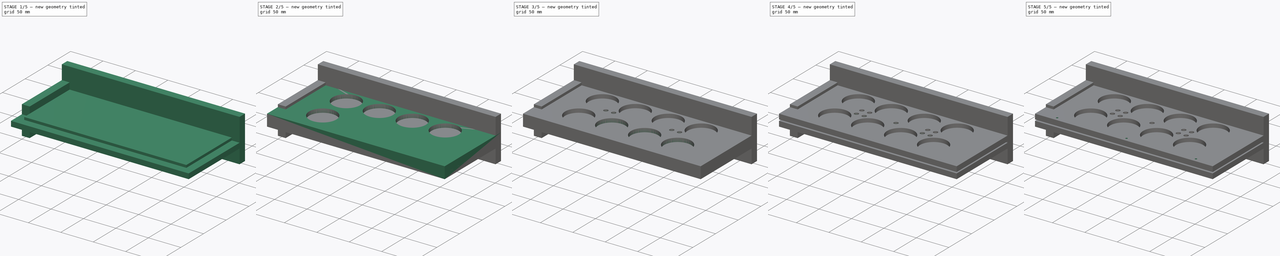
[diagram: build sequence overview — one tinted view per stage of 5, left to right]
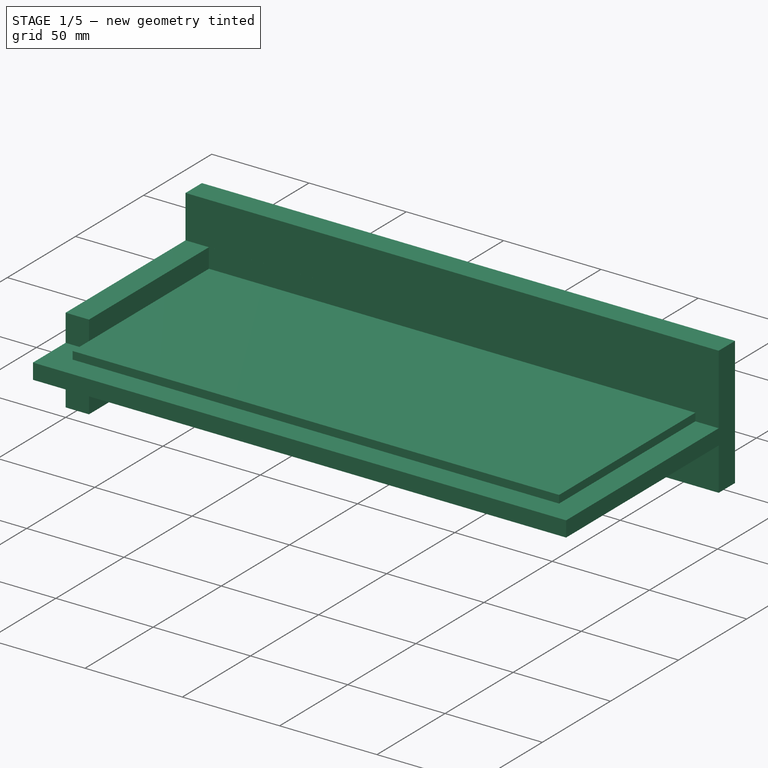
[diagram: stage 1 of 5 — iso view after this stage's code; geometry added in this stage tinted green]
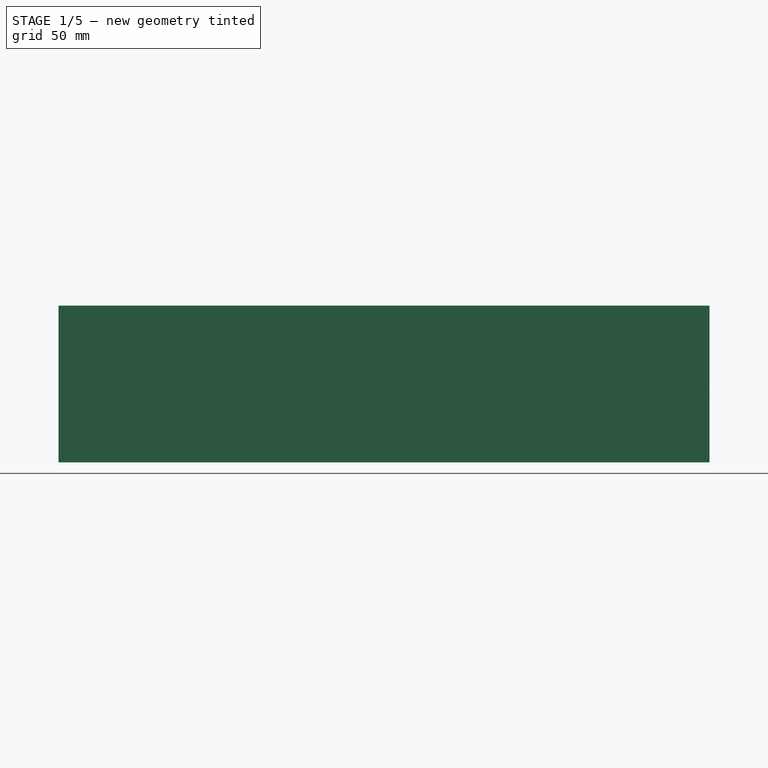
[diagram: stage 1 of 5 — front view after this stage's code; geometry added in this stage tinted green]
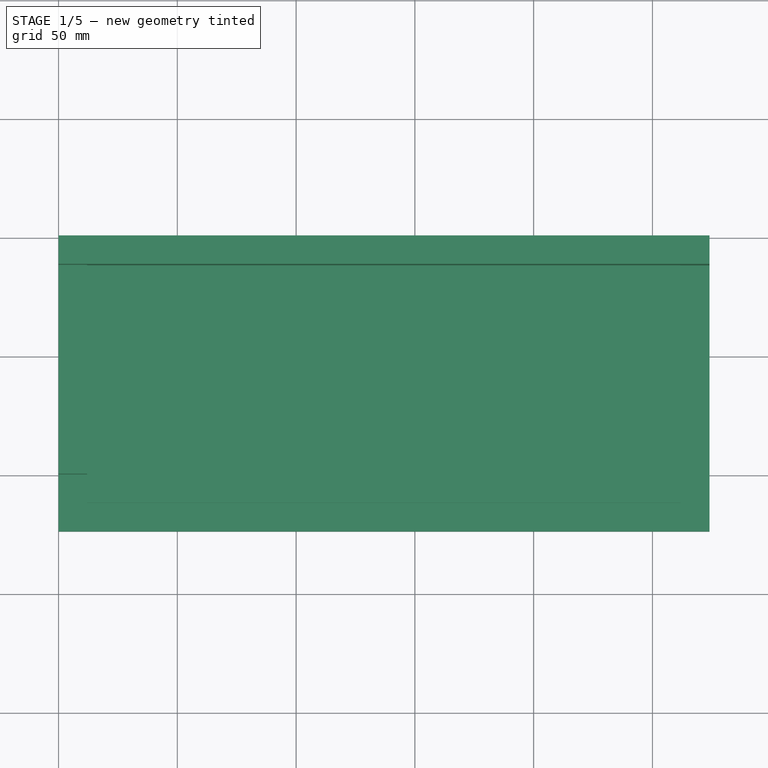
[diagram: stage 1 of 5 — top view after this stage's code; geometry added in this stage tinted green]
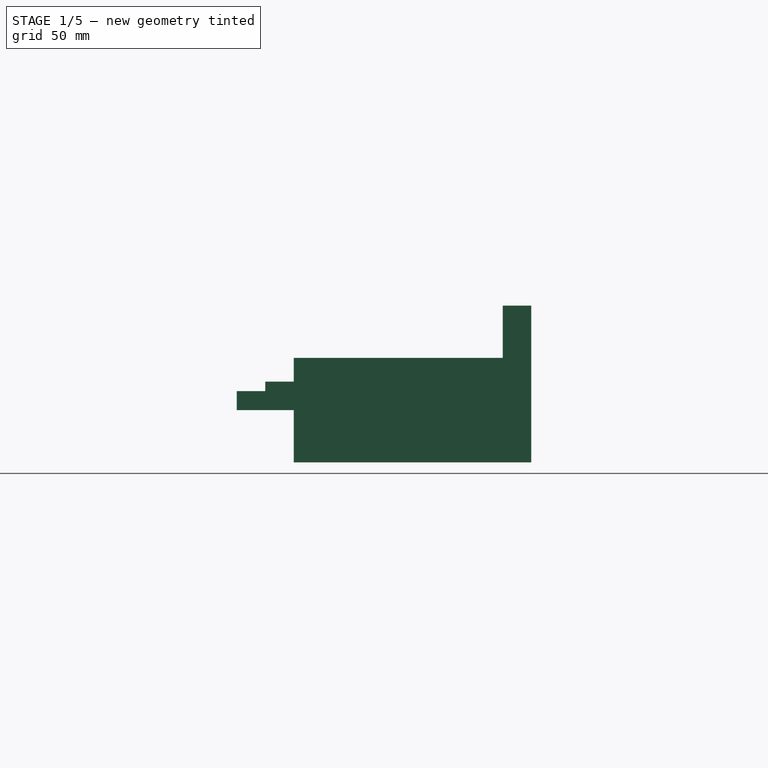
[diagram: stage 1 of 5 — right view after this stage's code; geometry added in this stage tinted green]
FCSTD DOCUMENT  (FreeCAD 0.18.4R)
Label: iroutlet
License: All rights reserved
LicenseURL: http://en.wikipedia.org/wiki/All_rights_reserved
objects: Sketcher::SketchObject×31, PartDesign::Pocket×25, PartDesign::Pad×6, PartDesign::Body×6
note: 99 computed .brp shape members not serialized (recipe doc carries the construction recipe); baked Part::Feature solids carry a one-line shape summary decoded from their .brp

FEATURE [PartDesign::Body] Body  label="top.body"
  Group = -> [Sketch001,Sketch,Sketch002,Sketch003,Sketch004,Sketch005,Sketch006,Sketch007,Sketch008,Pad,Pocket,Pocket001,Pocket002,Pocket003,Pocket004,Pocket005,Pocket006,Pocket007,Sketch009,Sketch010,Sketch011,Sketch012,Sketch013,Sketch014,Sketch015,Sketch016,Sketch017,Pocket008,Pocket009,Pocket010,Pocket011,Pocket012,Pocket013,Pocket014,Pocket015,Pocket016,Sketch018,Pocket017,Sketch019,Sketch020,Sketch021,+9 more]
  Origin = -> Origin
  Placement = pos=(0,0,42) rot=(0,0,1;0rad)
  Tip = -> Pocket023
FEATURE [Sketcher::SketchObject] Sketch025  label="bottom.sketch"
  MapMode = 5
  Support = -> [XY_Plane001]
  sketch-geometry (4):
    g0: LineSegment StartX=0 StartY=0 StartZ=0 EndX=274 EndY=0 EndZ=0
    g1: LineSegment StartX=274 StartY=0 StartZ=0 EndX=274 EndY=-124 EndZ=0
    g2: LineSegment StartX=274 StartY=-124 StartZ=0 EndX=0 EndY=-124 EndZ=0
    g3: LineSegment StartX=0 StartY=-124 StartZ=0 EndX=0 EndY=0 EndZ=0
  constraints (11):
    c: Coincident(g0,g1)
    c: Coincident(g1,g2)
    c: Coincident(g2,g3)
    c: Coincident(g3,g0)
    c: Horizontal(g0)
    c: Horizontal(g2)
    c: Vertical(g1)
    c: Vertical(g3)
    c: Coincident(g0,g-1)
    c: Distance(g2) = 274
    c: Distance(g1) = 124
FEATURE [PartDesign::Pad] Pad001  label="bottom.pad"
  Length = 12
  Length2 = 100
  Profile = -> Sketch025
  Type = 0
FEATURE [Sketcher::SketchObject] Sketch026  label="bottom.bevel.sketch"
  AttachmentOffset = pos=(0,0,10) rot=(0,0,1;0rad)
  MapMode = 5
  Placement = pos=(0,0,10) rot=(0,0,1;0rad)
  Support = -> [XY_Plane001]
  sketch-geometry (8):
    g0: LineSegment StartX=0 StartY=0 StartZ=0 EndX=274 EndY=0 EndZ=0
    g1: LineSegment StartX=274 StartY=0 StartZ=0 EndX=274 EndY=-124 EndZ=0
    g2: LineSegment StartX=274 StartY=-124 StartZ=0 EndX=0 EndY=-124 EndZ=0
    g3: LineSegment StartX=0 StartY=-124 StartZ=0 EndX=0 EndY=0 EndZ=0
    g4: LineSegment StartX=12 StartY=-12 StartZ=0 EndX=262 EndY=-12 EndZ=0
    g5: LineSegment StartX=262 StartY=-12 StartZ=0 EndX=262 EndY=-112 EndZ=0
    g6: LineSegment StartX=262 StartY=-112 StartZ=0 EndX=12 EndY=-112 EndZ=0
    g7: LineSegment StartX=12 StartY=-112 StartZ=0 EndX=12 EndY=-12 EndZ=0
  constraints (23):
    c: Coincident(g0,g1)
    c: Coincident(g1,g2)
    c: Coincident(g2,g3)
    c: Coincident(g3,g0)
    c: Horizontal(g0)
    c: Horizontal(g2)
    c: Vertical(g1)
    c: Vertical(g3)
    c: Coincident(g0,g-1)
    c: Distance(g2) = 274
    c: Distance(g1) = 124
    c: Coincident(g4,g5)
    c: Coincident(g5,g6)
    c: Coincident(g6,g7)
    c: Coincident(g7,g4)
    c: Horizontal(g4)
    c: Horizontal(g6)
    c: Vertical(g5)
    c: Vertical(g7)
    c: Distance(g4,g0) = 12
    c: Distance(g4,g3) = 12
    c: Distance(g5,g1) = 12
    c: Distance(g5,g2) = 12
FEATURE [PartDesign::Pocket] Pocket024  label="bottom.bevel.pocket"
  BaseFeature = -> Pad001
  Length = 4
  Length2 = 0
  Midplane = true
  Profile = -> Sketch026
  Type = 0
FEATURE [PartDesign::Body] Body001  label="bottom.body"
  Group = -> [Sketch025,Pad001,Sketch026,Pocket024]
  Origin = -> Origin001
  Tip = -> Pocket024
FEATURE [Sketcher::SketchObject] Sketch027  label="left.sketch"
  MapMode = 5
  Support = -> [XY_Plane002]
  sketch-geometry (4):
    g0: LineSegment StartX=0 StartY=0 StartZ=0 EndX=12 EndY=0 EndZ=0
    g1: LineSegment StartX=12 StartY=0 StartZ=0 EndX=12 EndY=-100 EndZ=0
    g2: LineSegment StartX=12 StartY=-100 StartZ=0 EndX=0 EndY=-100 EndZ=0
    g3: LineSegment StartX=0 StartY=-100 StartZ=0 EndX=0 EndY=0 EndZ=0
  constraints (11):
    c: Coincident(g0,g1)
    c: Coincident(g1,g2)
    c: Coincident(g2,g3)
    c: Coincident(g3,g0)
    c: Horizontal(g0)
    c: Horizontal(g2)
    c: Vertical(g1)
    c: Vertical(g3)
    c: Coincident(g0,g-1)
    c: Distance(g0) = 12
    c: Distance(g3) = 100
FEATURE [PartDesign::Pad] Pad002  label="left.pad"
  Length = 44
  Length2 = 100
  Midplane = true
  Profile = -> Sketch027
  Type = 0
FEATURE [PartDesign::Body] Body002  label="left.body"
  Group = -> [Sketch027,Pad002]
  Origin = -> Origin002
  Placement = pos=(0,-12,30) rot=(0,0,1;0rad)
  Tip = -> Pad002
FEATURE [Sketcher::SketchObject] Sketch028  label="right.sketch"
  MapMode = 5
  Support = -> [XY_Plane003]
  sketch-geometry (4):
    g0: LineSegment StartX=0 StartY=0 StartZ=0 EndX=12 EndY=0 EndZ=0
    g1: LineSegment StartX=12 StartY=0 StartZ=0 EndX=12 EndY=-100 EndZ=0
    g2: LineSegment StartX=12 StartY=-100 StartZ=0 EndX=0 EndY=-100 EndZ=0
    g3: LineSegment StartX=0 StartY=-100 StartZ=0 EndX=0 EndY=0 EndZ=0
  constraints (11):
    c: Coincident(g0,g1)
    c: Coincident(g1,g2)
    c: Coincident(g2,g3)
    c: Coincident(g3,g0)
    c: Horizontal(g0)
    c: Horizontal(g2)
    c: Vertical(g1)
    c: Vertical(g3)
    c: Coincident(g0,g-1)
    c: Distance(g0) = 12
    c: Distance(g3) = 100
FEATURE [PartDesign::Pad] Pad003  label="right.pad"
  Length = 44
  Length2 = 100
  Midplane = true
  Profile = -> Sketch028
  Type = 0
FEATURE [PartDesign::Body] Body003  label="right.body"
  Group = -> [Sketch028,Pad003]
  Origin = -> Origin003
  Placement = pos=(262,-12,30) rot=(0,0,1;0rad)
  Tip = -> Pad003
FEATURE [Sketcher::SketchObject] Sketch029  label="front.sketch"
  MapMode = 5
  Support = -> [XY_Plane004]
  sketch-geometry (4):
    g0: LineSegment StartX=0 StartY=0 StartZ=0 EndX=274 EndY=0 EndZ=0
    g1: LineSegment StartX=274 StartY=0 StartZ=0 EndX=274 EndY=-12 EndZ=0
    g2: LineSegment StartX=274 StartY=-12 StartZ=0 EndX=0 EndY=-12 EndZ=0
    g3: LineSegment StartX=0 StartY=-12 StartZ=0 EndX=0 EndY=0 EndZ=0
  constraints (11):
    c: Coincident(g0,g1)
    c: Coincident(g1,g2)
    c: Coincident(g2,g3)
    c: Coincident(g3,g0)
    c: Horizontal(g0)
    c: Horizontal(g2)
    c: Vertical(g1)
    c: Vertical(g3)
    c: Coincident(g0,g-1)
    c: Distance(g1) = 12
    c: Distance(g2) = 274
FEATURE [PartDesign::Pad] Pad004  label="front.pad"
  Length = 44
  Length2 = 100
  Midplane = true
  Profile = -> Sketch029
  Type = 0
FEATURE [PartDesign::Body] Body004  label="front.body"
  Group = -> [Sketch029,Pad004]
  Origin = -> Origin004
  Placement = pos=(0,0,30) rot=(0,0,1;0rad)
  Tip = -> Pad004
FEATURE [Sketcher::SketchObject] Sketch030  label="rear.sketch"
  MapMode = 5
  Support = -> [XY_Plane005]
  sketch-geometry (4):
    g0: LineSegment StartX=0 StartY=0 StartZ=0 EndX=274 EndY=0 EndZ=0
    g1: LineSegment StartX=274 StartY=0 StartZ=0 EndX=274 EndY=-12 EndZ=0
    g2: LineSegment StartX=274 StartY=-12 StartZ=0 EndX=0 EndY=-12 EndZ=0
    g3: LineSegment StartX=0 StartY=-12 StartZ=0 EndX=0 EndY=0 EndZ=0
  constraints (11):
    c: Coincident(g0,g1)
    c: Coincident(g1,g2)
    c: Coincident(g2,g3)
    c: Coincident(g3,g0)
    c: Horizontal(g0)
    c: Horizontal(g2)
    c: Vertical(g1)
    c: Vertical(g3)
    c: Coincident(g0,g-1)
    c: Distance(g1) = 12
    c: Distance(g2) = 274
FEATURE [PartDesign::Pad] Pad005  label="rear.pad"
  Length = 44
  Length2 = 100
  Profile = -> Sketch030
  Type = 0
FEATURE [PartDesign::Body] Body005  label="rear.body"
  Group = -> [Sketch030,Pad005]
  Origin = -> Origin005
  Placement = pos=(0,-112,8) rot=(0,0,1;0rad)
  Tip = -> Pad005
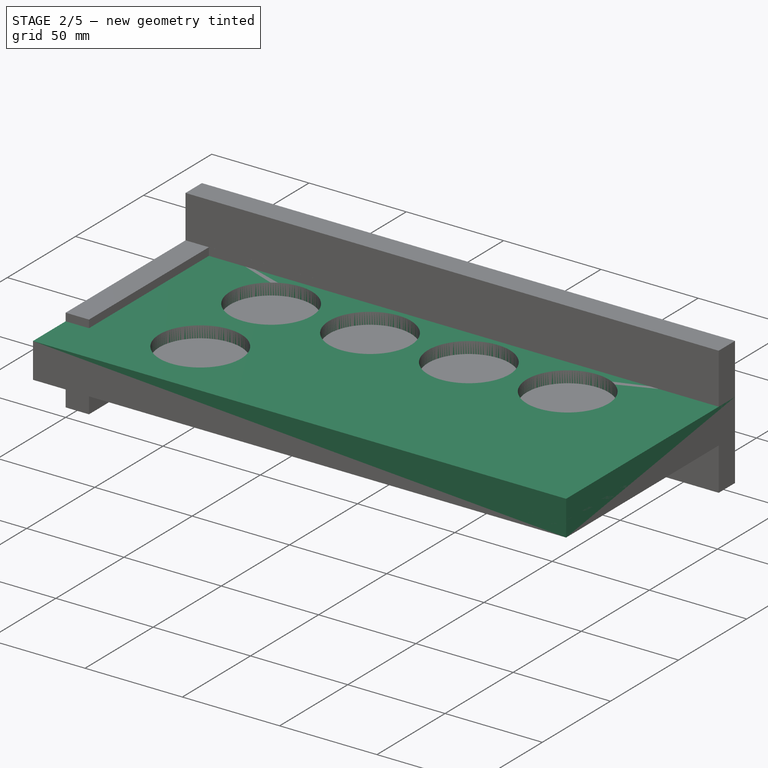
[diagram: stage 2 of 5 — iso view after this stage's code; geometry added in this stage tinted green]
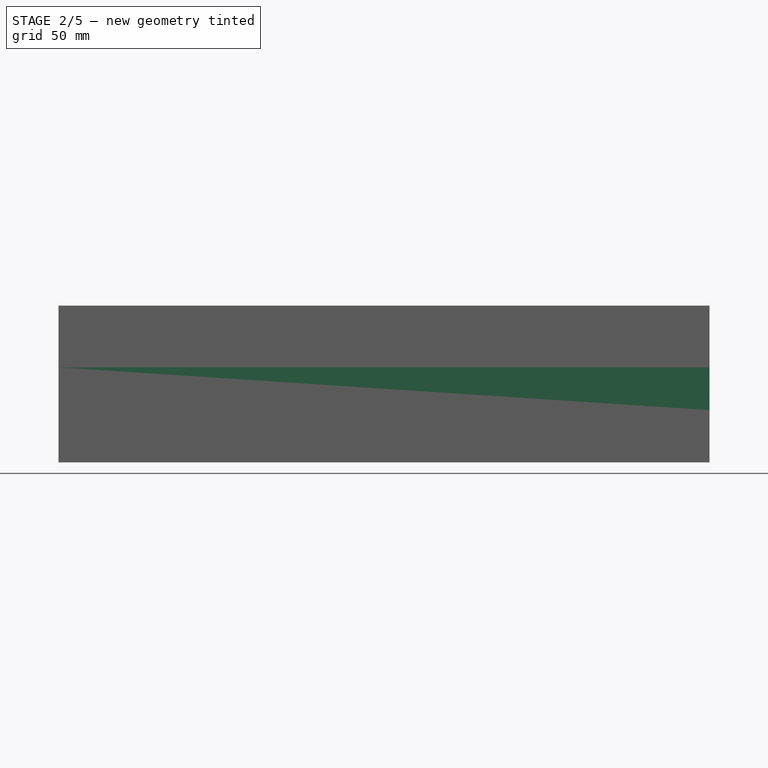
[diagram: stage 2 of 5 — front view after this stage's code; geometry added in this stage tinted green]
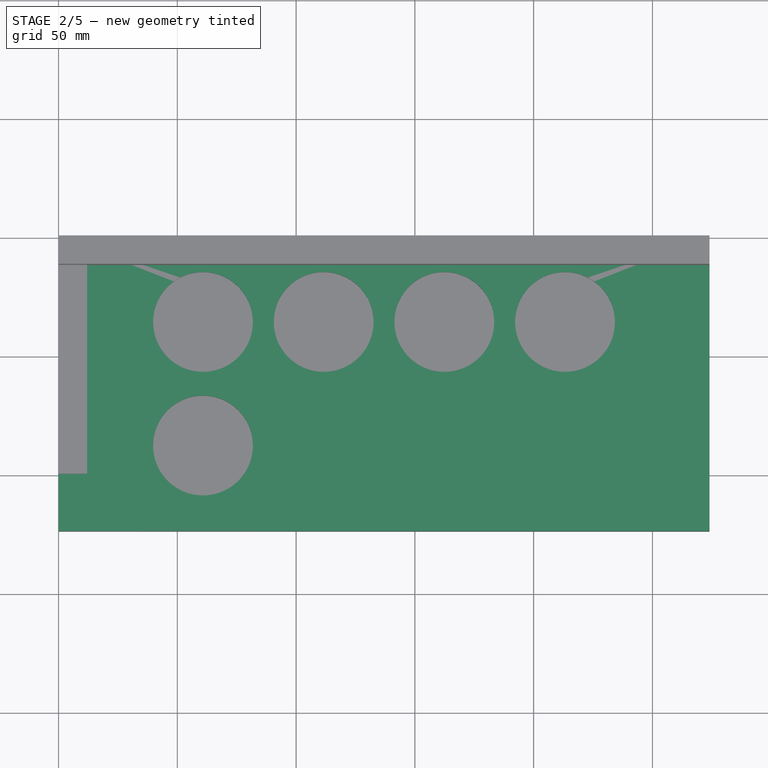
[diagram: stage 2 of 5 — top view after this stage's code; geometry added in this stage tinted green]
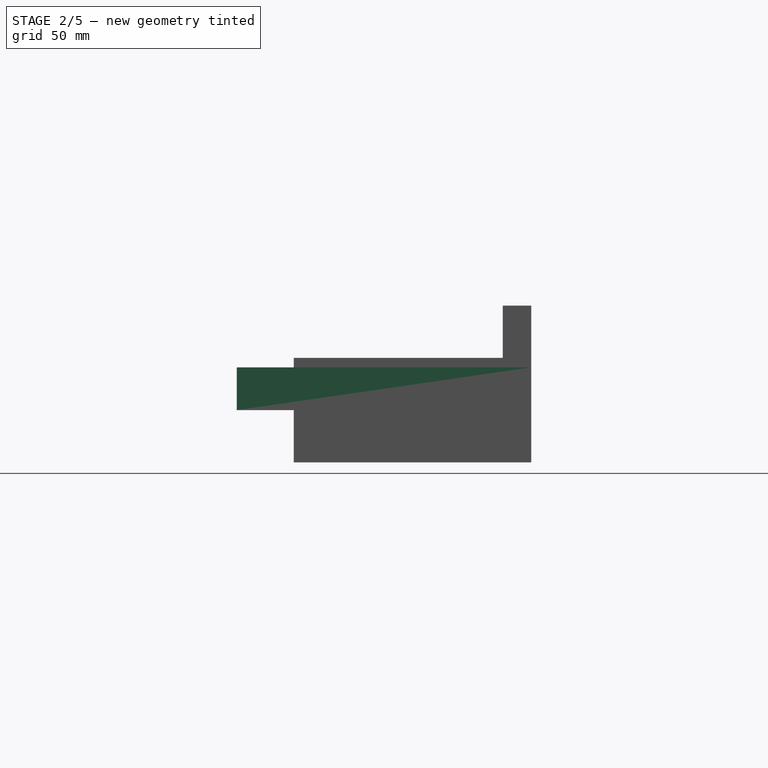
[diagram: stage 2 of 5 — right view after this stage's code; geometry added in this stage tinted green]
FEATURE [Sketcher::SketchObject] Sketch001  label="top.sketch"
  MapMode = 5
  Support = -> [XY_Plane]
  sketch-geometry (4):
    g0: LineSegment StartX=0 StartY=0 StartZ=0 EndX=274 EndY=0 EndZ=0
    g1: LineSegment StartX=274 StartY=0 StartZ=0 EndX=274 EndY=-124 EndZ=0
    g2: LineSegment StartX=274 StartY=-124 StartZ=0 EndX=0 EndY=-124 EndZ=0
    g3: LineSegment StartX=0 StartY=-124 StartZ=0 EndX=0 EndY=0 EndZ=0
  constraints (11):
    c: Coincident(g0,g1)
    c: Coincident(g1,g2)
    c: Coincident(g2,g3)
    c: Coincident(g3,g0)
    c: Horizontal(g0)
    c: Horizontal(g2)
    c: Vertical(g1)
    c: Vertical(g3)
    c: Coincident(g-1,g0)
    c: Distance(g2) = 274
    c: Distance(g3) = 124
FEATURE [Sketcher::SketchObject] Sketch  label="outlet.1.sketch"
  MapMode = 5
  Support = -> [XY_Plane]
  sketch-geometry (1):
    g0: Circle CenterX=60.8 CenterY=-35.99 CenterZ=0 NormalX=0 NormalY=0 NormalZ=1 AngleXU=0 Radius=21
  constraints (3):
    c: Diameter(g0) = 42
    c: Distance(g0,g-1) = 35.99
    c: Distance(g0,g-2) = 60.8
FEATURE [Sketcher::SketchObject] Sketch002  label="outlet.2.sketch"
  MapMode = 5
  Support = -> [XY_Plane]
  sketch-geometry (1):
    g0: Circle CenterX=111.6 CenterY=-35.99 CenterZ=0 NormalX=0 NormalY=0 NormalZ=1 AngleXU=0 Radius=21
  constraints (3):
    c: Diameter(g0) = 42
    c: Distance(g0,g-1) = 35.99
    c: Distance(g0,g-2) = 111.6
FEATURE [Sketcher::SketchObject] Sketch003  label="outlet.3.sketch"
  MapMode = 5
  Support = -> [XY_Plane]
  sketch-geometry (1):
    g0: Circle CenterX=162.4 CenterY=-35.99 CenterZ=0 NormalX=0 NormalY=0 NormalZ=1 AngleXU=0 Radius=21
  constraints (3):
    c: Diameter(g0) = 42
    c: Distance(g0,g-1) = 35.99
    c: Distance(g0,g-2) = 162.4
FEATURE [Sketcher::SketchObject] Sketch004  label="outlet.4.sketch"
  MapMode = 5
  Support = -> [XY_Plane]
  sketch-geometry (1):
    g0: Circle CenterX=213.2 CenterY=-35.99 CenterZ=0 NormalX=0 NormalY=0 NormalZ=1 AngleXU=0 Radius=21
  constraints (3):
    c: Diameter(g0) = 42
    c: Distance(g0,g-1) = 35.99
    c: Distance(g0,g-2) = 213.2
FEATURE [Sketcher::SketchObject] Sketch005  label="outlet.5.sketch"
  MapMode = 5
  Support = -> [XY_Plane]
  sketch-geometry (1):
    g0: Circle CenterX=60.8 CenterY=-88.01 CenterZ=0 NormalX=0 NormalY=0 NormalZ=1 AngleXU=0 Radius=21
  constraints (3):
    c: Diameter(g0) = 42
    c: Distance(g0,g-1) = 88.01
    c: Distance(g0,g-2) = 60.8
FEATURE [Sketcher::SketchObject] Sketch006  label="outlet.6.sketch"
  MapMode = 5
  Support = -> [XY_Plane]
  sketch-geometry (1):
    g0: Circle CenterX=111.6 CenterY=-88.01 CenterZ=0 NormalX=0 NormalY=0 NormalZ=1 AngleXU=0 Radius=21
  constraints (3):
    c: Diameter(g0) = 42
    c: Distance(g0,g-1) = 88.01
    c: Distance(g0,g-2) = 111.6
FEATURE [Sketcher::SketchObject] Sketch007  label="outlet.7.sketch"
  MapMode = 5
  Support = -> [XY_Plane]
  sketch-geometry (1):
    g0: Circle CenterX=162.4 CenterY=-88.01 CenterZ=0 NormalX=0 NormalY=0 NormalZ=1 AngleXU=0 Radius=21
  constraints (3):
    c: Diameter(g0) = 42
    c: Distance(g0,g-1) = 88.01
    c: Distance(g0,g-2) = 162.4
FEATURE [Sketcher::SketchObject] Sketch008  label="outlet.8.sketch"
  MapMode = 5
  Support = -> [XY_Plane]
  sketch-geometry (1):
    g0: Circle CenterX=213.2 CenterY=-88.01 CenterZ=0 NormalX=0 NormalY=0 NormalZ=1 AngleXU=0 Radius=21
  constraints (3):
    c: Diameter(g0) = 42
    c: Distance(g0,g-1) = 88.01
    c: Distance(g0,g-2) = 213.2
FEATURE [PartDesign::Pad] Pad  label="top.pad"
  Length = 18
  Length2 = 0
  Profile = -> Sketch001
  Type = 0
FEATURE [PartDesign::Pocket] Pocket  label="outlet.1.pocket"
  BaseFeature = -> Pad
  Length = 5
  Length2 = 100
  Midplane = true
  Profile = -> Sketch
  Type = 1
FEATURE [PartDesign::Pocket] Pocket001  label="outlet.2.pocket"
  BaseFeature = -> Pocket
  Length = 5
  Length2 = 100
  Midplane = true
  Profile = -> Sketch002
  Type = 1
FEATURE [PartDesign::Pocket] Pocket002  label="outlet.3.pocket"
  BaseFeature = -> Pocket001
  Length = 5
  Length2 = 100
  Midplane = true
  Profile = -> Sketch003
  Type = 1
FEATURE [PartDesign::Pocket] Pocket003  label="outlet.4.pocket"
  BaseFeature = -> Pocket002
  Length = 5
  Length2 = 100
  Midplane = true
  Profile = -> Sketch004
  Type = 1
FEATURE [PartDesign::Pocket] Pocket004  label="outlet.5.pocket"
  BaseFeature = -> Pocket003
  Length = 5
  Length2 = 100
  Midplane = true
  Profile = -> Sketch005
  Type = 1
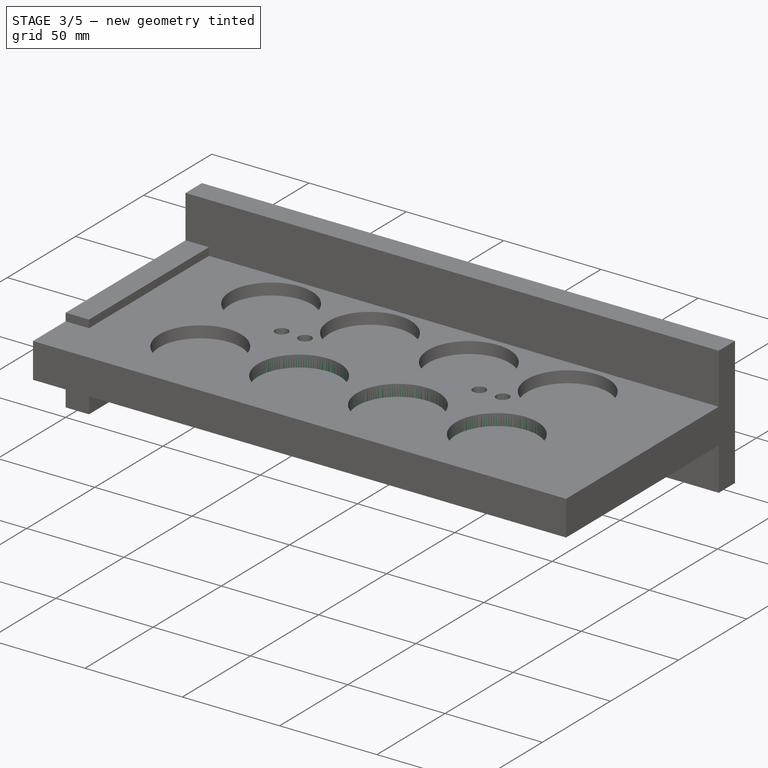
[diagram: stage 3 of 5 — iso view after this stage's code; geometry added in this stage tinted green]
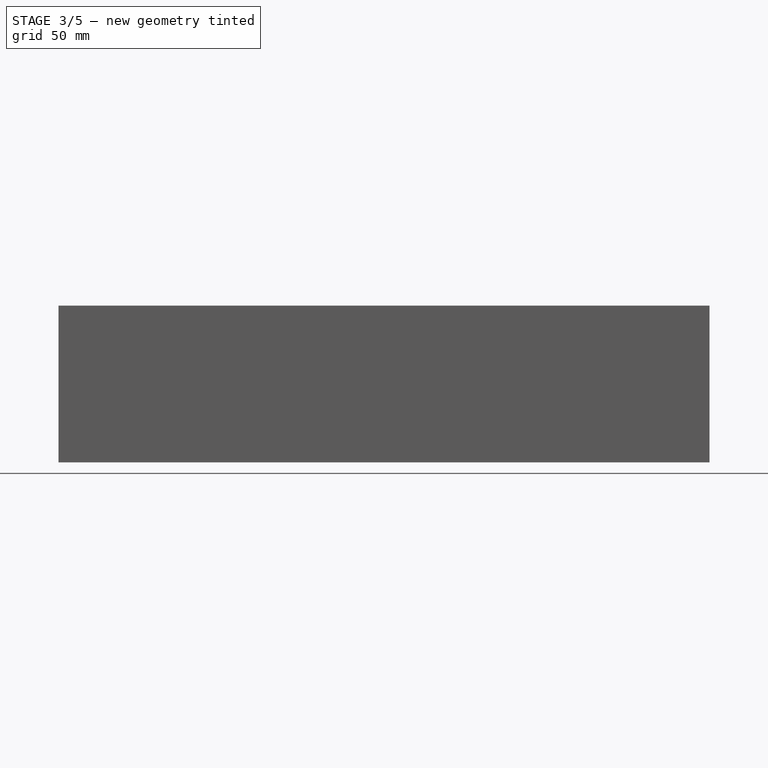
[diagram: stage 3 of 5 — front view after this stage's code; geometry added in this stage tinted green]
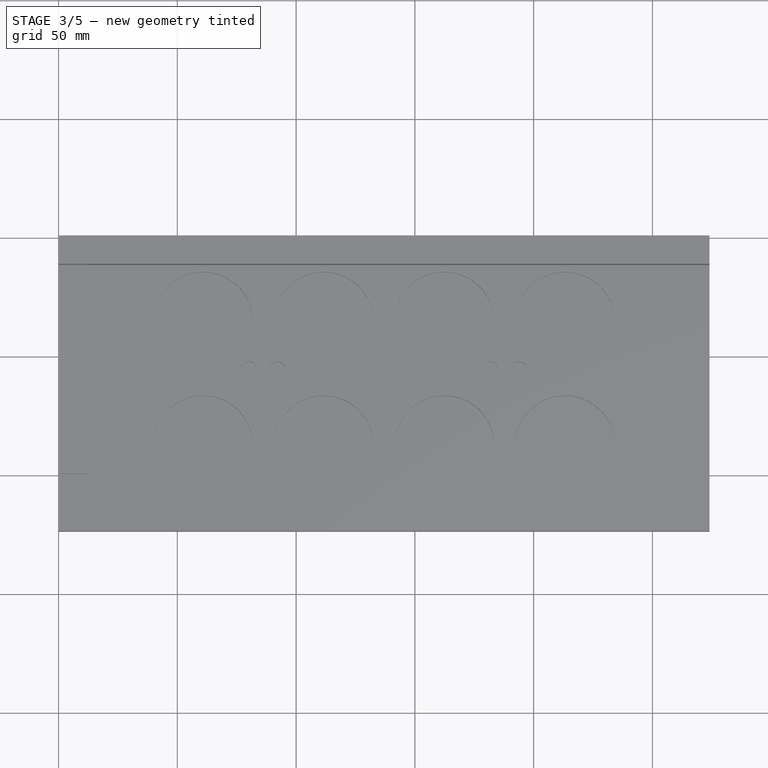
[diagram: stage 3 of 5 — top view after this stage's code; geometry added in this stage tinted green]
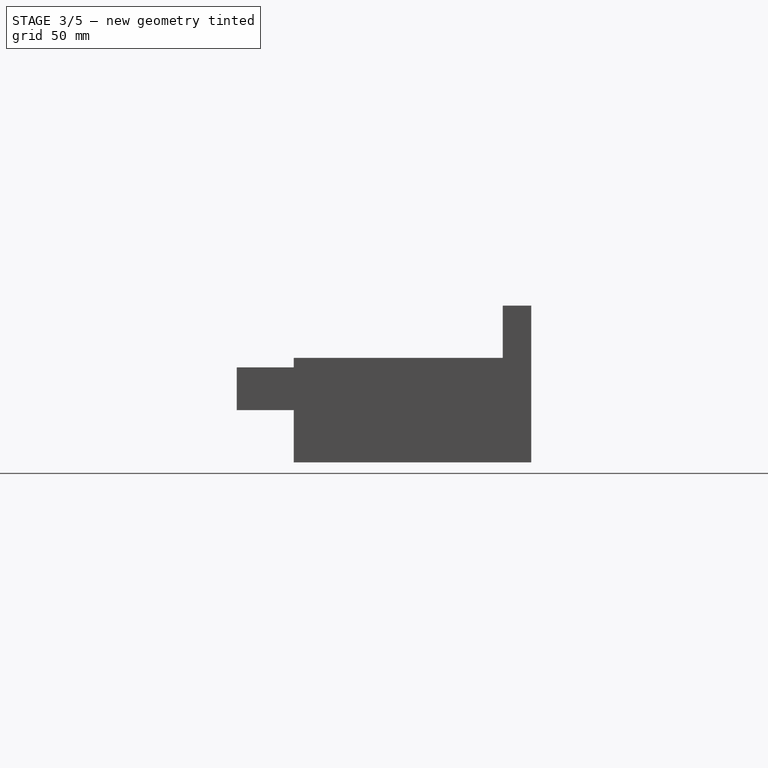
[diagram: stage 3 of 5 — right view after this stage's code; geometry added in this stage tinted green]
FEATURE [PartDesign::Pocket] Pocket005  label="outlet.6.pocket"
  BaseFeature = -> Pocket004
  Length = 5
  Length2 = 100
  Midplane = true
  Profile = -> Sketch006
  Type = 1
FEATURE [PartDesign::Pocket] Pocket006  label="outlet.7.pocket"
  BaseFeature = -> Pocket005
  Length = 5
  Length2 = 100
  Midplane = true
  Profile = -> Sketch007
  Type = 1
FEATURE [PartDesign::Pocket] Pocket007  label="outlet.8.pocket"
  BaseFeature = -> Pocket006
  Length = 5
  Length2 = 100
  Midplane = true
  Profile = -> Sketch008
  Type = 1
FEATURE [Sketcher::SketchObject] Sketch009  label="led.1.sketch"
  MapMode = 5
  Support = -> [XY_Plane]
  sketch-geometry (1):
    g0: Circle CenterX=80.2 CenterY=-56 CenterZ=0 NormalX=0 NormalY=0 NormalZ=1 AngleXU=0 Radius=3.3
  constraints (3):
    c: Diameter(g0) = 6.6
    c: Distance(g0,g-1) = 56
    c: Distance(g0,g-2) = 80.2
FEATURE [Sketcher::SketchObject] Sketch010  label="led.2.sketch"
  MapMode = 5
  Support = -> [XY_Plane]
  sketch-geometry (1):
    g0: Circle CenterX=92.2 CenterY=-56 CenterZ=0 NormalX=0 NormalY=0 NormalZ=1 AngleXU=0 Radius=3.3
  constraints (3):
    c: Diameter(g0) = 6.6
    c: Distance(g0,g-1) = 56
    c: Distance(g0,g-2) = 92.2
FEATURE [Sketcher::SketchObject] Sketch011  label="led.3.sketch"
  MapMode = 5
  Support = -> [XY_Plane]
  sketch-geometry (1):
    g0: Circle CenterX=181.8 CenterY=-56 CenterZ=0 NormalX=0 NormalY=0 NormalZ=1 AngleXU=0 Radius=3.3
  constraints (3):
    c: Diameter(g0) = 6.6
    c: Distance(g0,g-1) = 56
    c: Distance(g0,g-2) = 181.8
FEATURE [Sketcher::SketchObject] Sketch012  label="led.4.sketch"
  MapMode = 5
  Support = -> [XY_Plane]
  sketch-geometry (1):
    g0: Circle CenterX=193.8 CenterY=-56 CenterZ=0 NormalX=0 NormalY=0 NormalZ=1 AngleXU=0 Radius=3.3
  constraints (3):
    c: Diameter(g0) = 6.6
    c: Distance(g0,g-1) = 56
    c: Distance(g0,g-2) = 193.8
FEATURE [Sketcher::SketchObject] Sketch013  label="led.5.sketch"
  MapMode = 5
  Support = -> [XY_Plane]
  sketch-geometry (1):
    g0: Circle CenterX=80.2 CenterY=-68 CenterZ=0 NormalX=0 NormalY=0 NormalZ=1 AngleXU=0 Radius=3.3
  constraints (3):
    c: Diameter(g0) = 6.6
    c: Distance(g0,g-1) = 68
    c: Distance(g0,g-2) = 80.2
FEATURE [Sketcher::SketchObject] Sketch014  label="led.6.sketch"
  MapMode = 5
  Support = -> [XY_Plane]
  sketch-geometry (1):
    g0: Circle CenterX=92.2 CenterY=-68 CenterZ=0 NormalX=0 NormalY=0 NormalZ=1 AngleXU=0 Radius=3.3
  constraints (3):
    c: Diameter(g0) = 6.6
    c: Distance(g0,g-1) = 68
    c: Distance(g0,g-2) = 92.2
FEATURE [Sketcher::SketchObject] Sketch015  label="led.7.sketch"
  MapMode = 5
  Support = -> [XY_Plane]
  sketch-geometry (1):
    g0: Circle CenterX=181.8 CenterY=-68 CenterZ=0 NormalX=0 NormalY=0 NormalZ=1 AngleXU=0 Radius=3.3
  constraints (3):
    c: Diameter(g0) = 6.6
    c: Distance(g0,g-1) = 68
    c: Distance(g0,g-2) = 181.8
FEATURE [Sketcher::SketchObject] Sketch016  label="led.8.sketch"
  MapMode = 5
  Support = -> [XY_Plane]
  sketch-geometry (1):
    g0: Circle CenterX=193.8 CenterY=-68 CenterZ=0 NormalX=0 NormalY=0 NormalZ=1 AngleXU=0 Radius=3.3
  constraints (3):
    c: Diameter(g0) = 6.6
    c: Distance(g0,g-1) = 68
    c: Distance(g0,g-2) = 193.8
FEATURE [Sketcher::SketchObject] Sketch017  label="led.9.sketch"
  MapMode = 5
  Support = -> [XY_Plane]
  sketch-geometry (1):
    g0: Circle CenterX=137 CenterY=-62 CenterZ=0 NormalX=0 NormalY=0 NormalZ=1 AngleXU=0 Radius=3.3
  constraints (3):
    c: Diameter(g0) = 6.6
    c: Distance(g0,g-1) = 62
    c: Distance(g0,g-2) = 137
FEATURE [PartDesign::Pocket] Pocket008  label="led.1.pocket"
  BaseFeature = -> Pocket007
  Length = 5
  Length2 = 100
  Midplane = true
  Profile = -> Sketch009
  Type = 1
FEATURE [PartDesign::Pocket] Pocket009  label="led.2.pocket"
  BaseFeature = -> Pocket008
  Length = 5
  Length2 = 100
  Midplane = true
  Profile = -> Sketch010
  Type = 1
FEATURE [PartDesign::Pocket] Pocket010  label="led.3.pocket"
  BaseFeature = -> Pocket009
  Length = 5
  Length2 = 100
  Midplane = true
  Profile = -> Sketch011
  Type = 1
FEATURE [PartDesign::Pocket] Pocket011  label="led.4.pocket"
  BaseFeature = -> Pocket010
  Length = 5
  Length2 = 100
  Midplane = true
  Profile = -> Sketch012
  Type = 1
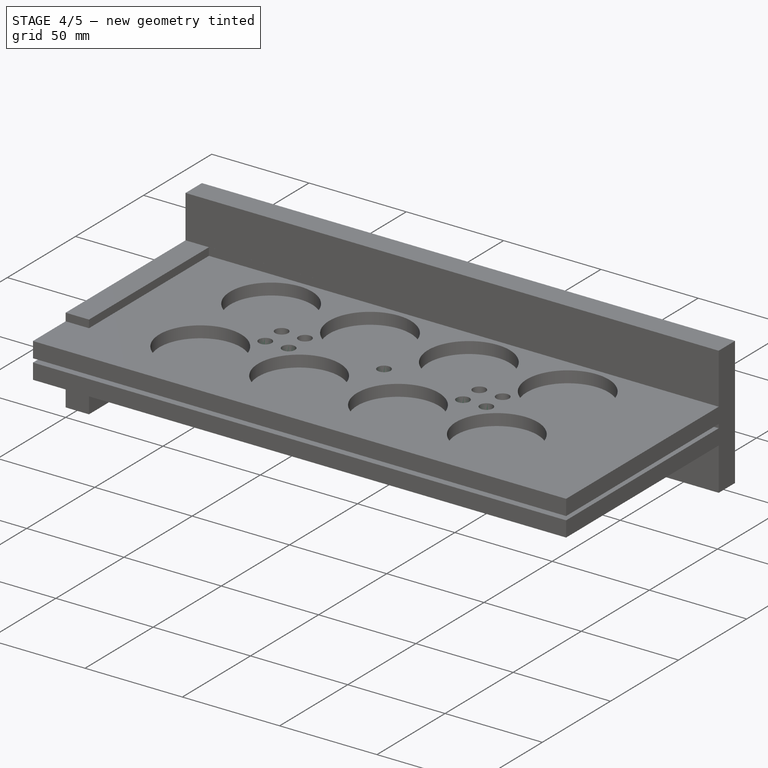
[diagram: stage 4 of 5 — iso view after this stage's code; geometry added in this stage tinted green]
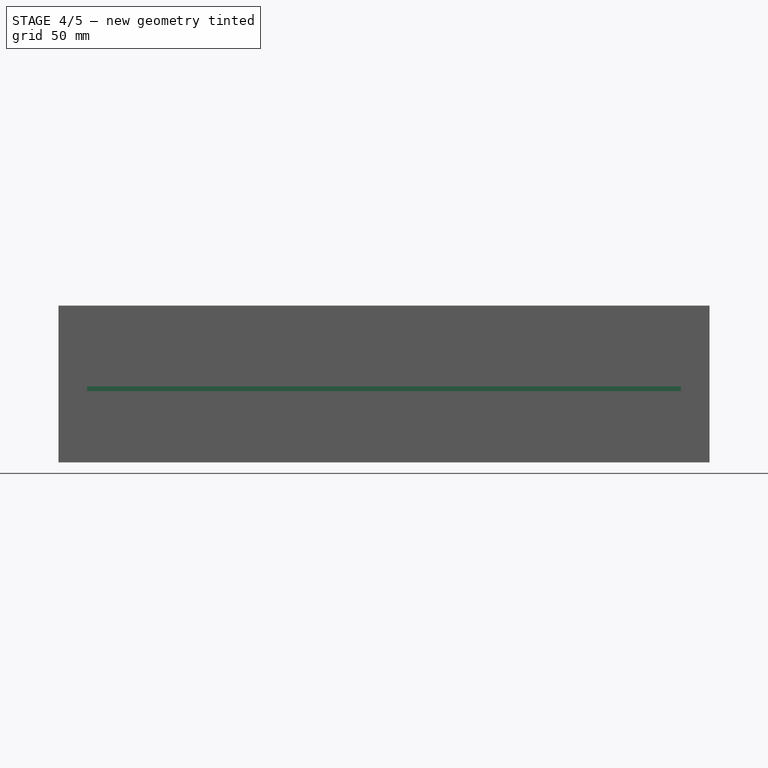
[diagram: stage 4 of 5 — front view after this stage's code; geometry added in this stage tinted green]
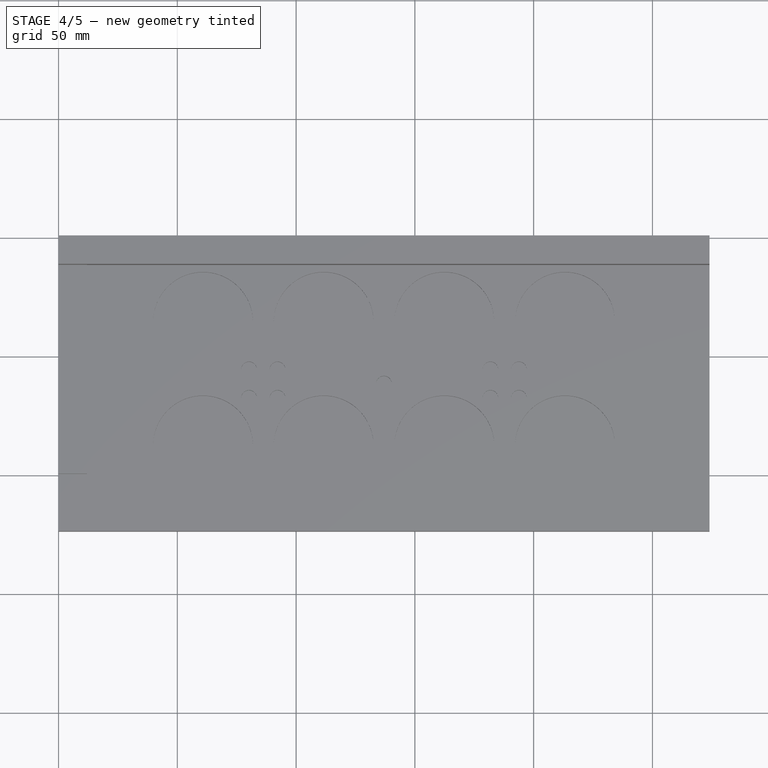
[diagram: stage 4 of 5 — top view after this stage's code; geometry added in this stage tinted green]
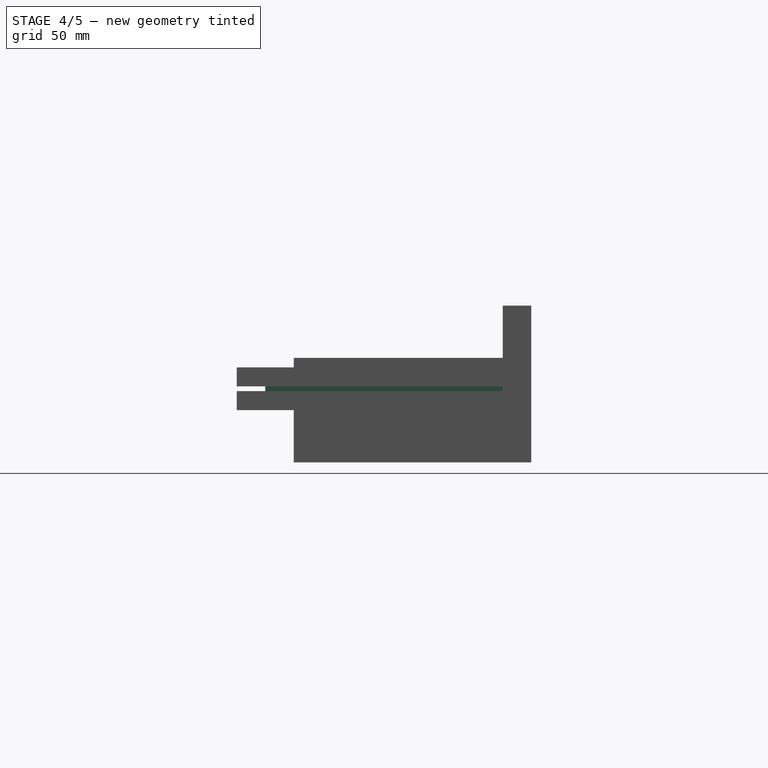
[diagram: stage 4 of 5 — right view after this stage's code; geometry added in this stage tinted green]
FEATURE [PartDesign::Pocket] Pocket012  label="led.5.pocket"
  BaseFeature = -> Pocket011
  Length = 5
  Length2 = 100
  Midplane = true
  Profile = -> Sketch013
  Type = 1
FEATURE [PartDesign::Pocket] Pocket013  label="led.6.pocket"
  BaseFeature = -> Pocket012
  Length = 5
  Length2 = 100
  Midplane = true
  Profile = -> Sketch014
  Type = 1
FEATURE [PartDesign::Pocket] Pocket014  label="led.7.pocket"
  BaseFeature = -> Pocket013
  Length = 5
  Length2 = 100
  Midplane = true
  Profile = -> Sketch015
  Type = 1
FEATURE [PartDesign::Pocket] Pocket015  label="led.8.pocket"
  BaseFeature = -> Pocket014
  Length = 5
  Length2 = 100
  Midplane = true
  Profile = -> Sketch016
  Type = 1
FEATURE [PartDesign::Pocket] Pocket016  label="led.9.pocket"
  BaseFeature = -> Pocket015
  Length = 5
  Length2 = 100
  Midplane = true
  Profile = -> Sketch017
  Type = 1
FEATURE [Sketcher::SketchObject] Sketch018  label="top.bevel.sketch"
  MapMode = 5
  Support = -> [XY_Plane]
  sketch-geometry (8):
    g0: LineSegment StartX=0 StartY=0 StartZ=0 EndX=274 EndY=0 EndZ=0
    g1: LineSegment StartX=274 StartY=0 StartZ=0 EndX=274 EndY=-124 EndZ=0
    g2: LineSegment StartX=274 StartY=-124 StartZ=0 EndX=0 EndY=-124 EndZ=0
    g3: LineSegment StartX=0 StartY=-124 StartZ=0 EndX=0 EndY=0 EndZ=0
    g4: LineSegment StartX=12 StartY=-12 StartZ=0 EndX=262 EndY=-12 EndZ=0
    g5: LineSegment StartX=262 StartY=-12 StartZ=0 EndX=262 EndY=-112 EndZ=0
    g6: LineSegment StartX=262 StartY=-112 StartZ=0 EndX=12 EndY=-112 EndZ=0
    g7: LineSegment StartX=12 StartY=-112 StartZ=0 EndX=12 EndY=-12 EndZ=0
  constraints (23):
    c: Coincident(g0,g1)
    c: Coincident(g1,g2)
    c: Coincident(g2,g3)
    c: Coincident(g3,g0)
    c: Horizontal(g0)
    c: Horizontal(g2)
    c: Vertical(g1)
    c: Vertical(g3)
    c: Coincident(g4,g5)
    c: Coincident(g5,g6)
    c: Coincident(g6,g7)
    c: Coincident(g7,g4)
    c: Horizontal(g4)
    c: Horizontal(g6)
    c: Vertical(g5)
    c: Vertical(g7)
    c: Coincident(g0,g-1)
    c: Distance(g2) = 274
    c: Distance(g3) = 124
    c: Distance(g5,g1) = 12
    c: Distance(g4,g0) = 12
    c: Distance(g6,g2) = 12
    c: Distance(g4,g3) = 12
FEATURE [PartDesign::Pocket] Pocket017  label="top.bevel.pocket"
  BaseFeature = -> Pocket016
  Length = 20
  Length2 = 100
  Midplane = true
  Profile = -> Sketch018
  Type = 0
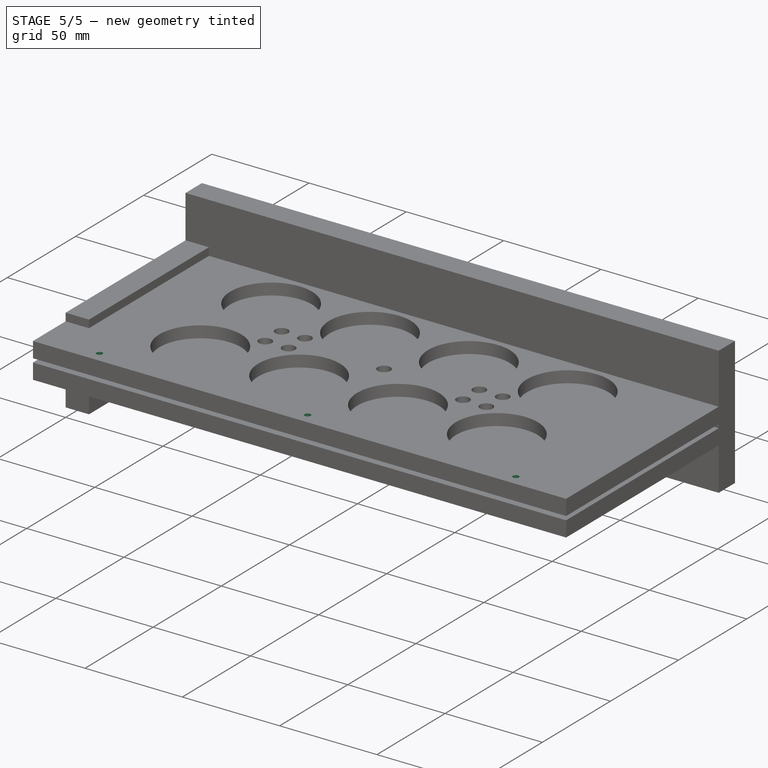
[diagram: stage 5 of 5 — iso view after this stage's code; geometry added in this stage tinted green]
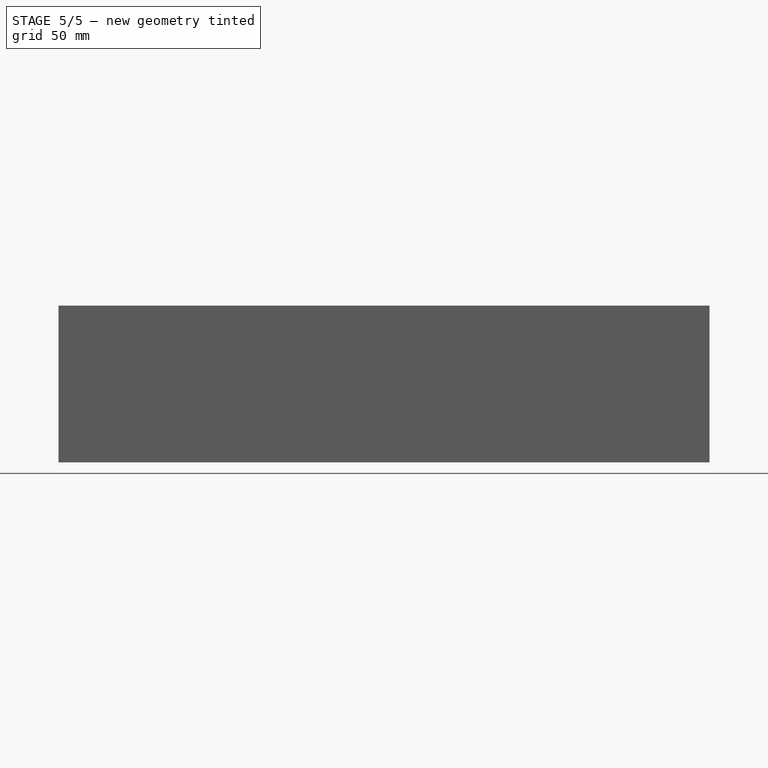
[diagram: stage 5 of 5 — front view after this stage's code; geometry added in this stage tinted green]
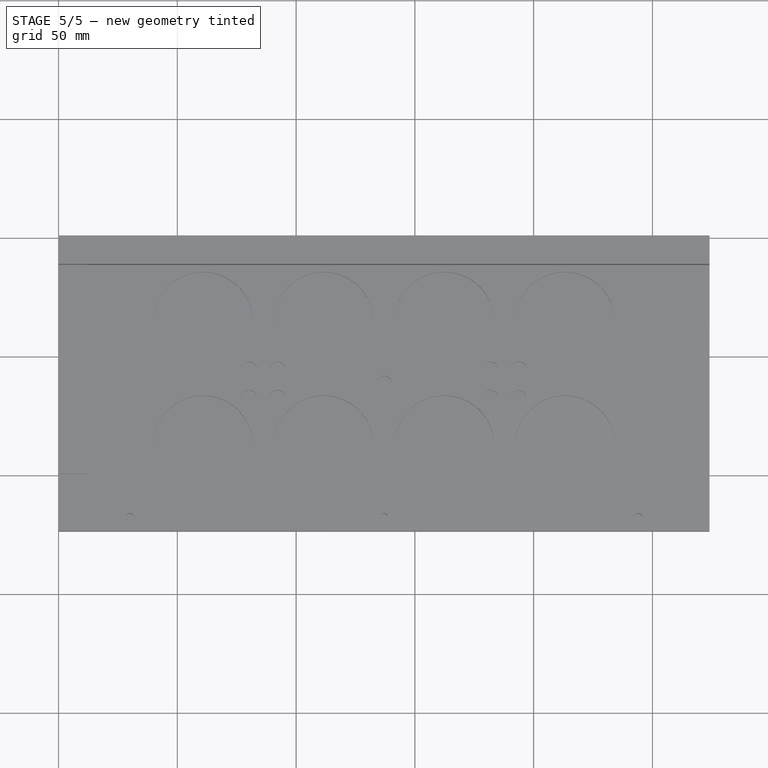
[diagram: stage 5 of 5 — top view after this stage's code; geometry added in this stage tinted green]
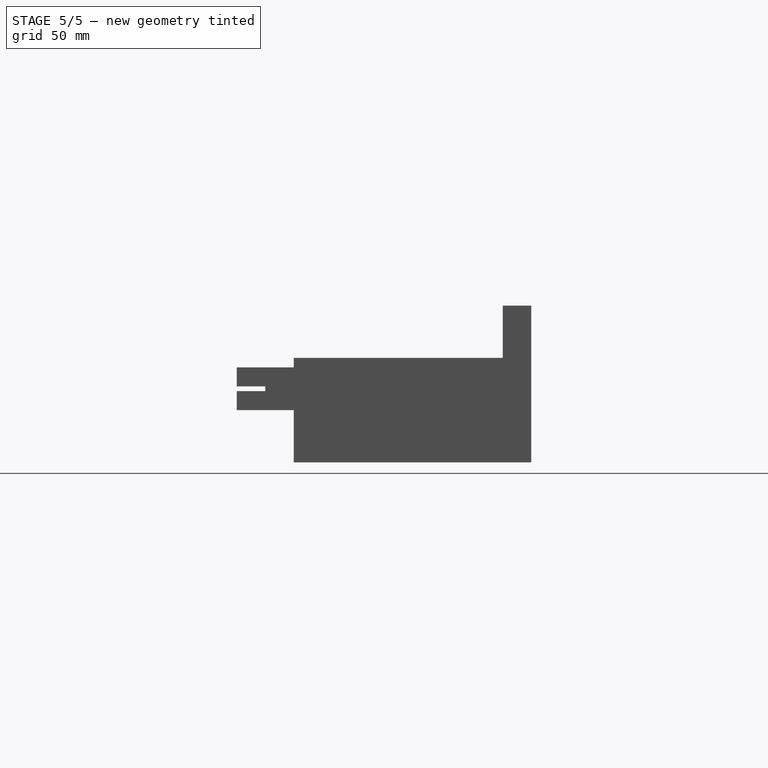
[diagram: stage 5 of 5 — right view after this stage's code; geometry added in this stage tinted green]
FEATURE [Sketcher::SketchObject] Sketch019  label="drill.1.sketch"
  MapMode = 5
  Support = -> [XY_Plane]
  sketch-geometry (1):
    g0: Circle CenterX=30 CenterY=-6 CenterZ=0 NormalX=0 NormalY=0 NormalZ=1 AngleXU=0 Radius=1.5
  constraints (3):
    c: Diameter(g0) = 3
    c: Distance(g0,g-1) = 6
    c: Distance(g0,g-2) = 30
FEATURE [Sketcher::SketchObject] Sketch020  label="drill.2.sketch"
  MapMode = 5
  Support = -> [XY_Plane]
  sketch-geometry (1):
    g0: Circle CenterX=137 CenterY=-6 CenterZ=0 NormalX=0 NormalY=0 NormalZ=1 AngleXU=0 Radius=1.5
  constraints (3):
    c: Diameter(g0) = 3
    c: Distance(g0,g-1) = 6
    c: Distance(g0,g-2) = 137
FEATURE [Sketcher::SketchObject] Sketch021  label="drill.3.sketch"
  MapMode = 5
  Support = -> [XY_Plane]
  sketch-geometry (1):
    g0: Circle CenterX=244 CenterY=-6 CenterZ=0 NormalX=0 NormalY=0 NormalZ=1 AngleXU=0 Radius=1.5
  constraints (3):
    c: Diameter(g0) = 3
    c: Distance(g0,g-1) = 6
    c: Distance(g0,g-2) = 244
FEATURE [Sketcher::SketchObject] Sketch022  label="drill.4.sketch"
  MapMode = 5
  Support = -> [XY_Plane]
  sketch-geometry (1):
    g0: Circle CenterX=30 CenterY=-118 CenterZ=0 NormalX=0 NormalY=0 NormalZ=1 AngleXU=0 Radius=1.5
  constraints (3):
    c: Diameter(g0) = 3
    c: Distance(g0,g-1) = 118
    c: Distance(g0,g-2) = 30
FEATURE [PartDesign::Pocket] Pocket018  label="drill.1.pocket"
  BaseFeature = -> Pocket017
  Length = 5
  Length2 = 100
  Midplane = true
  Profile = -> Sketch019
  Type = 1
FEATURE [Sketcher::SketchObject] Sketch023  label="drill.5.sketch"
  MapMode = 5
  Support = -> [XY_Plane]
  sketch-geometry (1):
    g0: Circle CenterX=137 CenterY=-118 CenterZ=0 NormalX=0 NormalY=0 NormalZ=1 AngleXU=0 Radius=1.5
  constraints (3):
    c: Diameter(g0) = 3
    c: Distance(g0,g-1) = 118
    c: Distance(g0,g-2) = 137
FEATURE [Sketcher::SketchObject] Sketch024  label="drill.6.sketch"
  MapMode = 5
  Support = -> [XY_Plane]
  sketch-geometry (1):
    g0: Circle CenterX=244 CenterY=-118 CenterZ=0 NormalX=0 NormalY=0 NormalZ=1 AngleXU=0 Radius=1.5
  constraints (3):
    c: Diameter(g0) = 3
    c: Distance(g0,g-1) = 118
    c: Distance(g0,g-2) = 244
FEATURE [PartDesign::Pocket] Pocket019  label="drill.2.pocket"
  BaseFeature = -> Pocket018
  Length = 5
  Length2 = 100
  Midplane = true
  Profile = -> Sketch020
  Type = 1
FEATURE [PartDesign::Pocket] Pocket020  label="drill.3.pocket"
  BaseFeature = -> Pocket019
  Length = 5
  Length2 = 100
  Midplane = true
  Profile = -> Sketch021
  Type = 1
FEATURE [PartDesign::Pocket] Pocket021  label="drill.4.pocket"
  BaseFeature = -> Pocket020
  Length = 5
  Length2 = 100
  Midplane = true
  Profile = -> Sketch022
  Type = 1
FEATURE [PartDesign::Pocket] Pocket022  label="drill.5.pocket"
  BaseFeature = -> Pocket021
  Length = 5
  Length2 = 100
  Midplane = true
  Profile = -> Sketch023
  Type = 1
FEATURE [PartDesign::Pocket] Pocket023  label="drill.6.pocket"
  BaseFeature = -> Pocket022
  Length = 5
  Length2 = 100
  Midplane = true
  Profile = -> Sketch024
  Type = 1
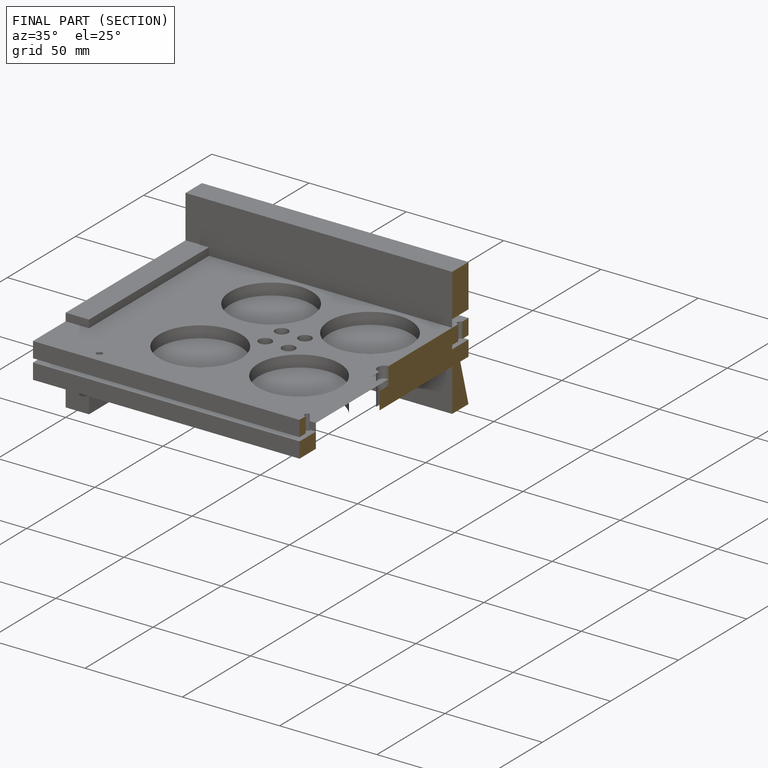
[diagram: finished part — half-section view (interior)]
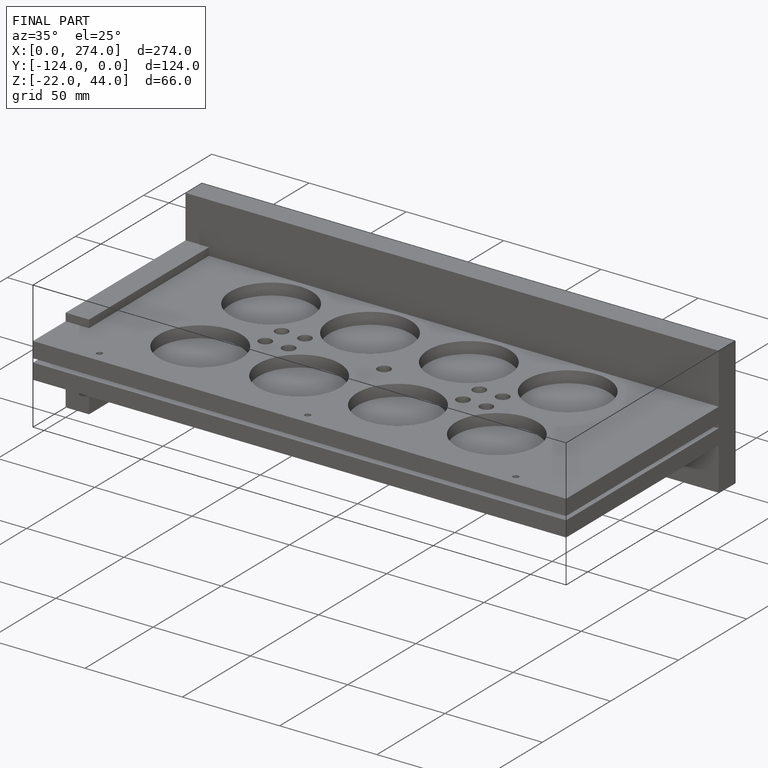
[diagram: finished part — iso view with bounding-box wireframe]
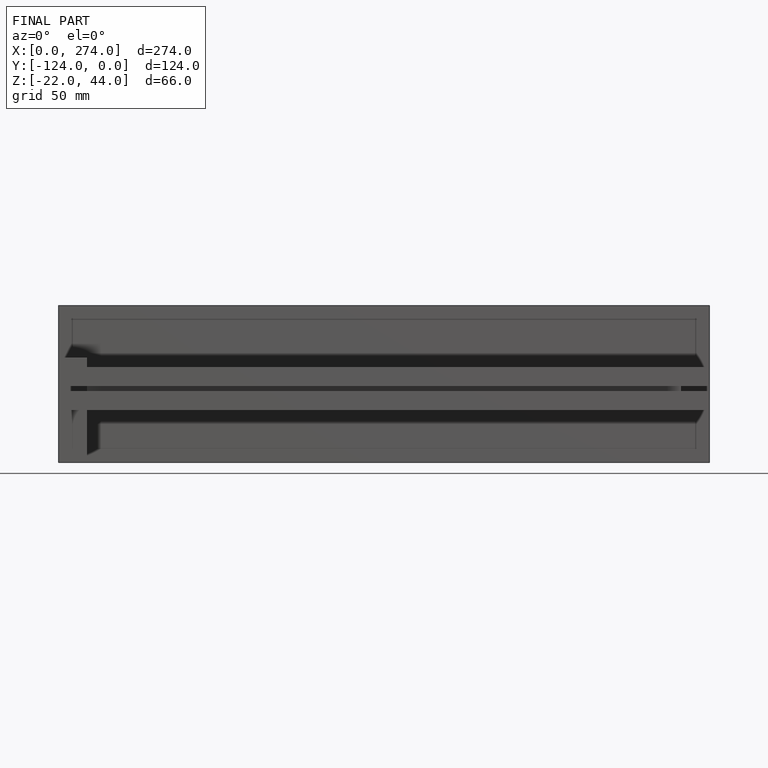
[diagram: finished part — front view with bounding-box wireframe]
